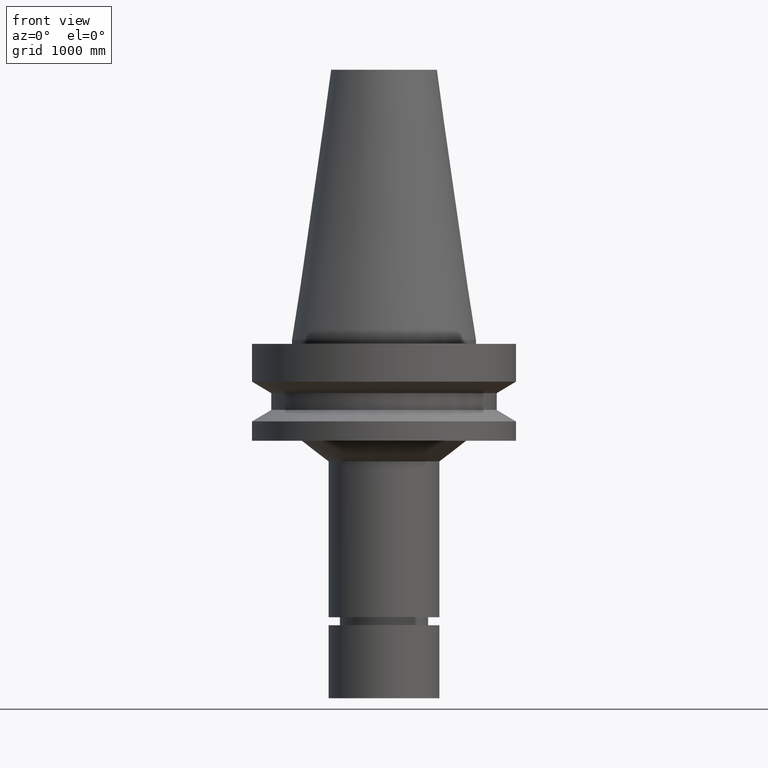
[diagram: clean part render]
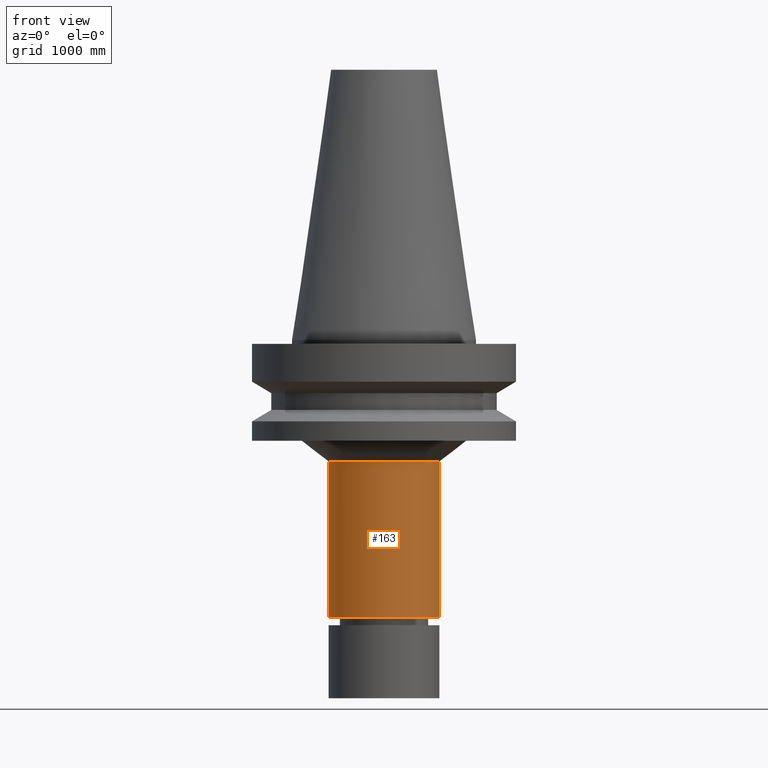
[diagram: same view with one face highlighted and labeled with its STEP entity id]
A machine part, front view. The second image highlights one B-rep face of the part: STEP entity #163.
In plain terms, the highlighted cylindrical surface (bore or boss wall) has radius 533.4 mm, axis along (-0, -0, 1).
Its self-contained STEP definition (entity closure, byte-faithful):
#75=EDGE_CURVE('Unnamed[1]',#201,#201,#202,.T.);
#151=EDGE_CURVE('Unnamed[1]',#317,#317,#318,.T.);
#163=ADVANCED_FACE('Unnamed[1]',(#335,#336),#337,.T.);
#201=VERTEX_POINT('',#377);
#202=CIRCLE('',#378,20.9999999999932);
#317=VERTEX_POINT('',#521);
#318=CIRCLE('',#522,21.0000000000002);
#335=FACE_BOUND('',#543,.T.);
#336=FACE_BOUND('',#544,.T.);
#337=CYLINDRICAL_SURFACE('',#545,20.9999999999967);
#377=CARTESIAN_POINT('',(2.80228874343689E-015,20.9999999999932,-45.7648482058329));
#378=AXIS2_PLACEMENT_3D('',#580,#581,#582);
#521=CARTESIAN_POINT('',(6.39877952554491E-015,21.0000000000003,-104.5));
#522=AXIS2_PLACEMENT_3D('',#706,#707,#708);
#543=EDGE_LOOP('',(#727));
#544=EDGE_LOOP('',(#728));
#545=AXIS2_PLACEMENT_3D('',#729,#730,#731);
#580=CARTESIAN_POINT('',(2.80228874343689E-015,1.52780275954612E-014,-45.7648482058329));
#581=DIRECTION('',(-6.12323399573677E-017,-1.5261999847715E-017,1.0));
#582=DIRECTION('',(-5.7616806938739E-033,1.0,1.5261999847715E-017));
#706=CARTESIAN_POINT('',(6.39877952554491E-015,1.61744434732004E-014,-104.5));
#707=DIRECTION('',(-6.12323399573677E-017,-1.52619998477099E-017,1.0));
#708=DIRECTION('',(-5.76168069387197E-033,1.0,1.52619998477099E-017));
#727=ORIENTED_EDGE('',*,*,#75,.F.);
#728=ORIENTED_EDGE('',*,*,#151,.T.);
#729=CARTESIAN_POINT('',(4.6005341344909E-015,1.57262355343308E-014,-75.1324241029164));
#730=DIRECTION('',(-6.12323399573677E-017,-1.52619998477124E-017,1.0));
#731=DIRECTION('',(-5.76168069387721E-033,1.0,1.52619998477124E-017));